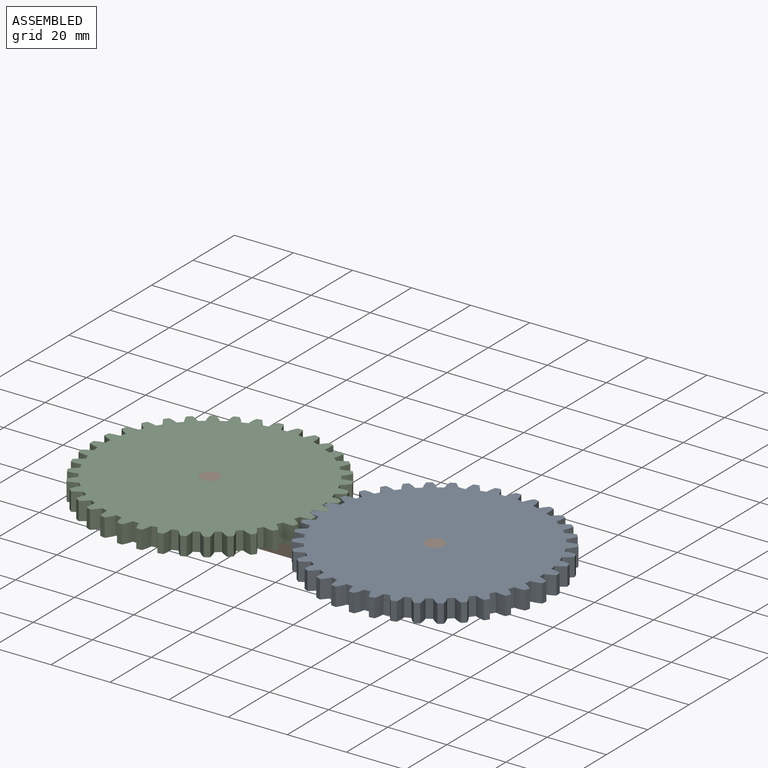
[diagram: assembled view]
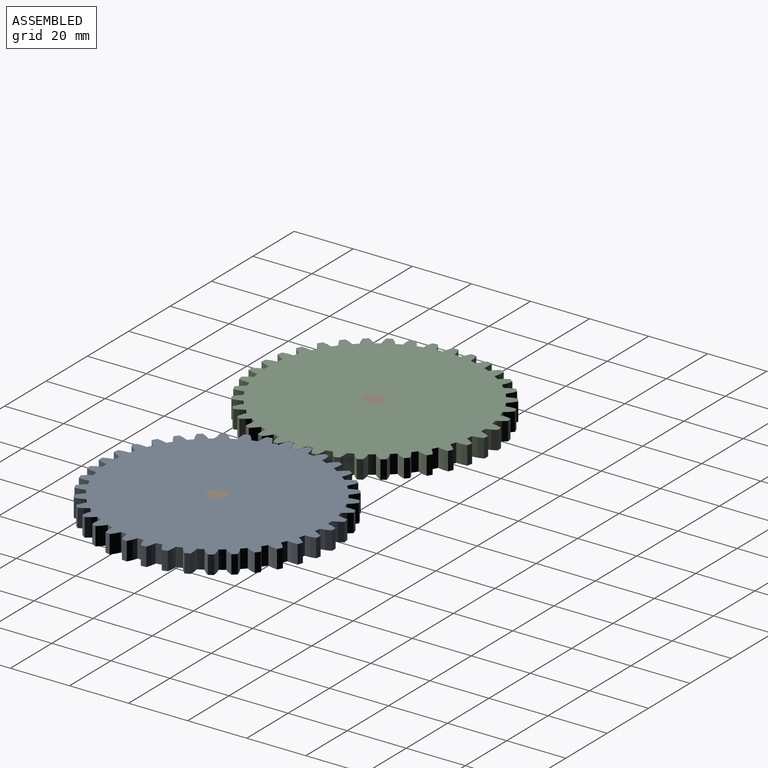
[diagram: assembled view, second angle]
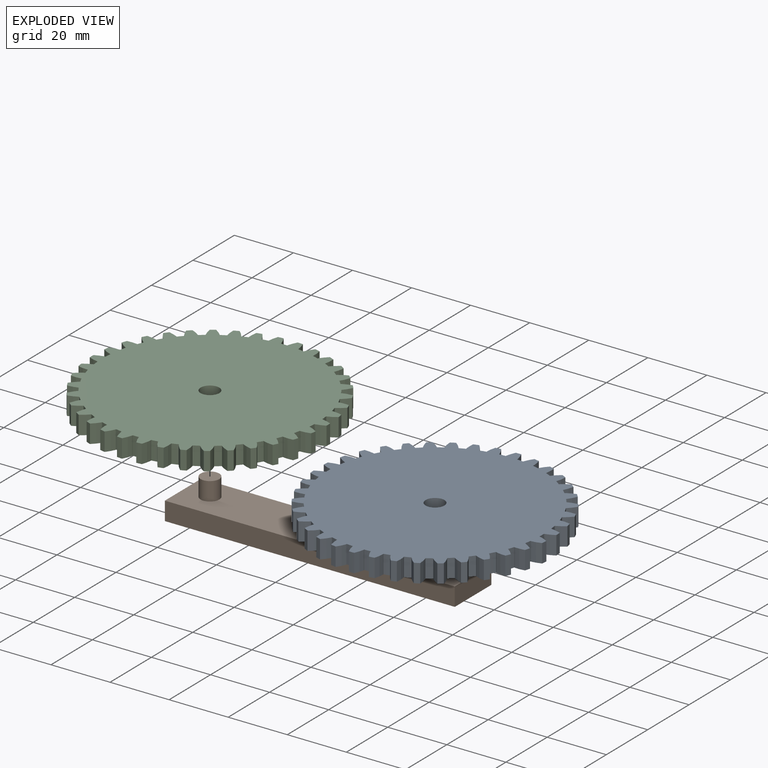
[diagram: exploded view]
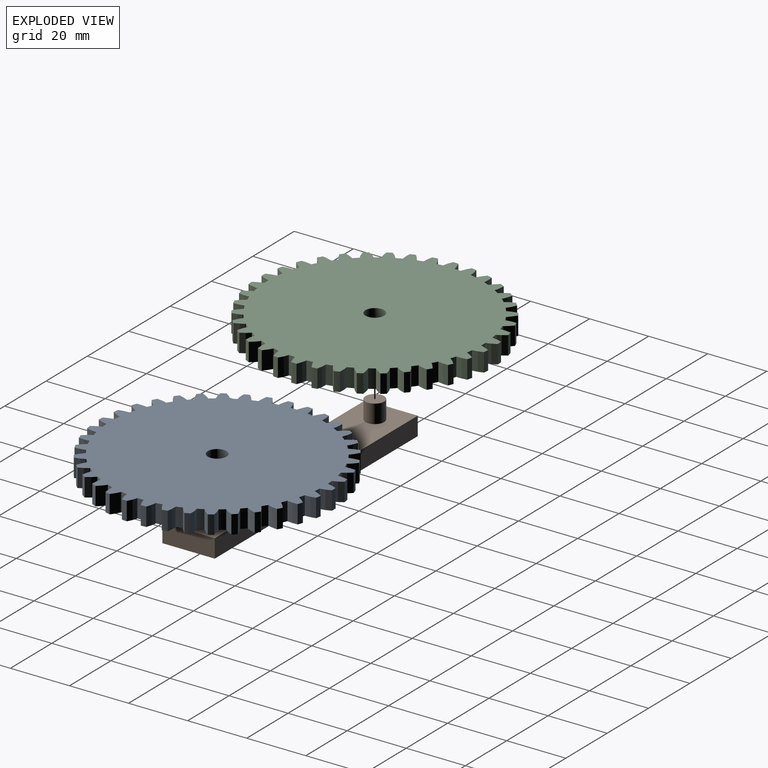
[diagram: exploded view, second angle]
ASSEMBLY  parts=3 mates=2
PART A: 231 faces, bbox 79.6x79.6x6.3 mm
  f0: cylinder r=36.44mm len=6.25mm, axis (0,0,-1), area 13.5mm2, adj f43,f44,f184,f189
  f1: cylinder r=36.44mm len=6.25mm, axis (0,0,-1), area 13.5mm2, adj f43,f44,f164,f169
  f2: cylinder r=36.44mm len=6.25mm, axis (0,0,-1), area 13.5mm2, adj f43,f44,f188,f194
  f3: cylinder r=36.44mm len=6.25mm, axis (0,0,-1), area 13.5mm2, adj f43,f44,f144,f149
  f4: cylinder r=36.44mm len=6.25mm, axis (0,0,-1), area 13.5mm2, adj f43,f44,f148,f154
  f5: cylinder r=36.44mm len=6.25mm, axis (0,0,-1), area 13.5mm2, adj f43,f44,f134,f139
  f6: cylinder r=36.44mm len=6.25mm, axis (0,0,-1), area 13.5mm2, adj f43,f44,f89,f94
  f7: cylinder r=36.44mm len=6.25mm, axis (0,0,-1), area 13.5mm2, adj f43,f44,f99,f104
  f8: cylinder r=36.44mm len=6.25mm, axis (0,0,-1), area 13.5mm2, adj f41,f43,f44,f59
  f9: cylinder r=36.44mm len=6.25mm, axis (0,0,-1), area 13.5mm2, adj f43,f44,f49,f54
  f10: cylinder r=36.44mm len=6.25mm, axis (0,0,-1), area 13.5mm2, adj f43,f44,f69,f74
  f11: cylinder r=36.44mm len=6.25mm, axis (0,0,-1), area 13.5mm2, adj f43,f44,f199,f204
  f12: cylinder r=36.44mm len=6.25mm, axis (0,0,-1), area 13.5mm2, adj f43,f44,f193,f198
  f13: cylinder r=36.44mm len=6.25mm, axis (0,0,-1), area 13.5mm2, adj f43,f44,f119,f124
  f14: cylinder r=36.44mm len=6.25mm, axis (0,0,-1), area 13.5mm2, adj f43,f44,f48,f225
  f15: cylinder r=36.44mm len=6.25mm, axis (0,0,-1), area 13.5mm2, adj f43,f44,f153,f159
  f16: cylinder r=36.44mm len=6.25mm, axis (0,0,-1), area 13.5mm2, adj f43,f44,f168,f174
  f17: cylinder r=36.44mm len=6.25mm, axis (0,0,-1), area 13.5mm2, adj f43,f44,f114,f118
  f18: cylinder r=36.44mm len=6.25mm, axis (0,0,-1), area 13.5mm2, adj f43,f44,f179,f183
  f19: cylinder r=36.44mm len=6.25mm, axis (0,0,-1), area 13.5mm2, adj f43,f44,f219,f224
  f20: cylinder r=36.44mm len=6.25mm, axis (0,0,-1), area 13.5mm2, adj f43,f44,f209,f214
  f21: cylinder r=36.44mm len=6.25mm, axis (0,0,-1), area 13.5mm2, adj f43,f44,f138,f143
  f22: cylinder r=36.44mm len=6.25mm, axis (0,0,-1), area 13.5mm2, adj f43,f44,f158,f163
  f23: cylinder r=36.44mm len=6.25mm, axis (0,0,-1), area 13.5mm2, adj f43,f44,f109,f113
  f24: cylinder r=36.44mm len=6.25mm, axis (0,0,-1), area 13.5mm2, adj f43,f44,f84,f88
  f25: cylinder r=36.44mm len=6.25mm, axis (0,0,-1), area 13.5mm2, adj f43,f44,f53,f58
  f26: cylinder r=36.44mm len=6.25mm, axis (0,0,-1), area 13.5mm2, adj f43,f44,f63,f68
  f27: cylinder r=36.44mm len=6.25mm, axis (0,0,-1), area 13.5mm2, adj f43,f44,f123,f129
  f28: cylinder r=36.44mm len=6.25mm, axis (0,0,-1), area 13.5mm2, adj f43,f44,f203,f208
  f29: cylinder r=36.44mm len=6.25mm, axis (0,0,-1), area 13.5mm2, adj f43,f44,f103,f108
  f30: cylinder r=36.44mm len=6.25mm, axis (0,0,-1), area 13.5mm2, adj f43,f44,f213,f218
  f31: cylinder r=36.44mm len=6.25mm, axis (0,0,-1), area 13.5mm2, adj f43,f44,f73,f79
  f32: cylinder r=36.44mm len=6.25mm, axis (0,0,-1), area 13.5mm2, adj f43,f44,f173,f178
  f33: cylinder r=36.44mm len=6.25mm, axis (0,0,-1), area 13.5mm2, adj f43,f44,f128,f133
  f34: cylinder r=36.44mm len=6.25mm, axis (0,0,-1), area 13.5mm2, adj f43,f44,f223,f229
  f35: cylinder r=36.44mm len=6.25mm, axis (0,0,-1), area 13.5mm2, adj f43,f44,f78,f83
  f36: cylinder r=36.44mm len=6.25mm, axis (0,0,-1), area 13.5mm2, adj f43,f44,f93,f98
  f37: plane 6.25x0.22mm, normal (-0.49,-0.87,0), area 1.6mm2, adj f38,f42,f43,f44
  f38: extruded ~6.25x3.21mm, area 20.6mm2, adj f37,f39,f43,f44
  f39: cylinder r=39.78mm len=6.25mm, axis (0,0,-1), area 11.2mm2, adj f38,f40,f43,f44
  f40: extruded ~6.25x2.48mm, area 20.6mm2, adj f39,f41,f43,f44
  f41: plane 6.25x0.21mm, normal (0.53,0.85,0), area 1.6mm2, adj f8,f40,f43,f44
  f42: cylinder r=36.44mm len=6.25mm, axis (0,0,-1), area 13.5mm2, adj f37,f43,f44,f64
  f43: plane 79.56x79.56mm, normal (0,0,1), area 4524.7mm2, adj f0,f1,f2,f3,f4,f5,f6,f7
  f44: plane 79.56x79.56mm, normal (0,0,-1), area 4524.7mm2, adj f0,f1,f2,f3,f4,f5,f6,f7
  f45: extruded ~6.25x3.17mm, area 20.6mm2, adj f43,f44,f46,f49
  f46: cylinder r=39.78mm len=6.25mm, axis (0,0,-1), area 11.2mm2, adj f43,f44,f45,f47
  f47: extruded ~6.25x3.08mm, area 20.6mm2, adj f43,f44,f46,f48
  f48: plane 6.25x0.25mm, normal (0.06,1,0), area 1.6mm2, adj f14,f43,f44,f47
  f49: plane 6.25x0.25mm, normal (-0.02,-1,0), area 1.6mm2, adj f9,f43,f44,f45
  f50: extruded ~6.25x3.27mm, area 20.6mm2, adj f43,f44,f51,f53
  f51: cylinder r=39.78mm len=6.25mm, axis (0,0,-1), area 11.2mm2, adj f43,f44,f50,f52
  f52: extruded ~6.25x2.85mm, area 20.6mm2, adj f43,f44,f51,f54
  f53: plane 6.25x0.25mm, normal (-0.18,-0.98,0), area 1.6mm2, adj f25,f43,f44,f50
  f54: plane 6.25x0.24mm, normal (0.23,0.97,0), area 1.6mm2, adj f9,f43,f44,f52
  f55: extruded ~6.25x3.29mm, area 20.6mm2, adj f43,f44,f56,f59
  f56: cylinder r=39.78mm len=6.25mm, axis (0,0,-1), area 11.2mm2, adj f43,f44,f55,f57
  f57: extruded ~6.25x2.54mm, area 20.6mm2, adj f43,f44,f56,f58
  f58: plane 6.25x0.23mm, normal (0.38,0.92,0), area 1.6mm2, adj f25,f43,f44,f57
  f59: plane 6.25x0.23mm, normal (-0.34,-0.94,0), area 1.6mm2, adj f8,f43,f44,f55
  f60: extruded ~6.25x3.05mm, area 20.6mm2, adj f43,f44,f61,f63
  f61: cylinder r=39.78mm len=6.25mm, axis (0,0,-1), area 11.2mm2, adj f43,f44,f60,f62
  f62: extruded ~6.25x2.8mm, area 20.6mm2, adj f43,f44,f61,f64
  f63: plane 6.25x0.19mm, normal (-0.63,-0.78,0), area 1.6mm2, adj f26,f43,f44,f60
  f64: plane 6.25x0.19mm, normal (0.66,0.75,0), area 1.6mm2, adj f42,f43,f44,f62
  f65: extruded ~6.25x2.8mm, area 20.6mm2, adj f43,f44,f66,f69
  f66: cylinder r=39.78mm len=6.25mm, axis (0,0,-1), area 11.2mm2, adj f43,f44,f65,f67
  f67: extruded ~6.25x3.05mm, area 20.6mm2, adj f43,f44,f66,f68
  f68: plane 6.25x0.19mm, normal (0.78,0.63,0), area 1.6mm2, adj f26,f43,f44,f67
  f69: plane 6.25x0.19mm, normal (-0.75,-0.66,0), area 1.6mm2, adj f10,f43,f44,f65
  f70: extruded ~6.25x2.48mm, area 20.6mm2, adj f43,f44,f71,f73
  f71: cylinder r=39.78mm len=6.25mm, axis (0,0,-1), area 11.2mm2, adj f43,f44,f70,f72
  f72: extruded ~6.25x3.21mm, area 20.6mm2, adj f43,f44,f71,f74
  f73: plane 6.25x0.21mm, normal (-0.85,-0.53,0), area 1.6mm2, adj f31,f43,f44,f70
  f74: plane 6.25x0.22mm, normal (0.87,0.49,0), area 1.6mm2, adj f10,f43,f44,f72
  f75: extruded ~6.25x2.54mm, area 20.6mm2, adj f43,f44,f76,f78
  f76: cylinder r=39.78mm len=6.25mm, axis (0,0,-1), area 11.2mm2, adj f43,f44,f75,f77
  f77: extruded ~6.25x3.29mm, area 20.6mm2, adj f43,f44,f76,f79
  f78: plane 6.25x0.23mm, normal (-0.92,-0.38,0), area 1.6mm2, adj f35,f43,f44,f75
  f79: plane 6.25x0.23mm, normal (0.94,0.34,0), area 1.6mm2, adj f31,f43,f44,f77
  f80: extruded ~6.25x2.85mm, area 20.6mm2, adj f43,f44,f81,f84
  f81: cylinder r=39.78mm len=6.25mm, axis (0,0,-1), area 11.2mm2, adj f43,f44,f80,f82
  f82: extruded ~6.25x3.27mm, area 20.6mm2, adj f43,f44,f81,f83
  f83: plane 6.25x0.25mm, normal (0.98,0.18,0), area 1.6mm2, adj f35,f43,f44,f82
  f84: plane 6.25x0.24mm, normal (-0.97,-0.23,0), area 1.6mm2, adj f24,f43,f44,f80
  f85: extruded ~6.25x3.08mm, area 20.6mm2, adj f43,f44,f86,f89
  f86: cylinder r=39.78mm len=6.25mm, axis (0,0,-1), area 11.2mm2, adj f43,f44,f85,f87
  f87: extruded ~6.25x3.17mm, area 20.6mm2, adj f43,f44,f86,f88
  f88: plane 6.25x0.25mm, normal (1,0.02,0), area 1.6mm2, adj f24,f43,f44,f87
  f89: plane 6.25x0.25mm, normal (-1,-0.06,0), area 1.6mm2, adj f6,f43,f44,f85
  f90: extruded ~6.25x3.23mm, area 20.6mm2, adj f43,f44,f91,f93
  f91: cylinder r=39.78mm len=6.25mm, axis (0,0,-1), area 11.2mm2, adj f43,f44,f90,f92
  f92: extruded ~6.25x2.98mm, area 20.6mm2, adj f43,f44,f91,f94
  f93: plane 6.25x0.25mm, normal (-0.99,0.1,0), area 1.6mm2, adj f36,f43,f44,f90
  f94: plane 6.25x0.25mm, normal (0.99,-0.14,0), area 1.6mm2, adj f6,f43,f44,f92
  f95: extruded ~6.25x3.29mm, area 20.6mm2, adj f43,f44,f96,f99
  f96: cylinder r=39.78mm len=6.25mm, axis (0,0,-1), area 11.2mm2, adj f43,f44,f95,f97
  f97: extruded ~6.25x2.7mm, area 20.6mm2, adj f43,f44,f96,f98
  f98: plane 6.25x0.24mm, normal (0.95,-0.31,0), area 1.6mm2, adj f36,f43,f44,f97
  f99: plane 6.25x0.24mm, normal (-0.96,0.27,0), area 1.6mm2, adj f7,f43,f44,f95
  f100: extruded ~6.25x3.26mm, area 20.6mm2, adj f43,f44,f101,f103
  f101: cylinder r=39.78mm len=6.25mm, axis (0,0,-1), area 11.2mm2, adj f43,f44,f100,f102
  f102: extruded ~6.25x2.36mm, area 20.6mm2, adj f43,f44,f101,f104
  f103: plane 6.25x0.23mm, normal (-0.91,0.42,0), area 1.6mm2, adj f29,f43,f44,f100
  f104: plane 6.25x0.22mm, normal (0.89,-0.46,0), area 1.6mm2, adj f7,f43,f44,f102
  f105: extruded ~6.25x3.14mm, area 20.6mm2, adj f43,f44,f106,f109
  f106: cylinder r=39.78mm len=6.25mm, axis (0,0,-1), area 11.2mm2, adj f43,f44,f105,f107
  f107: extruded ~6.25x2.65mm, area 20.6mm2, adj f43,f44,f106,f108
  f108: plane 6.25x0.2mm, normal (0.8,-0.6,0), area 1.6mm2, adj f29,f43,f44,f107
  f109: plane 6.25x0.21mm, normal (-0.83,0.56,0), area 1.6mm2, adj f23,f43,f44,f105
  f110: extruded ~6.25x2.94mm, area 20.6mm2, adj f43,f44,f111,f114
  f111: cylinder r=39.78mm len=6.25mm, axis (0,0,-1), area 11.2mm2, adj f43,f44,f110,f112
  f112: extruded ~6.25x2.94mm, area 20.6mm2, adj f43,f44,f111,f113
  f113: plane 6.25x0.18mm, normal (0.69,-0.72,0), area 1.6mm2, adj f23,f43,f44,f112
  f114: plane 6.25x0.18mm, normal (-0.72,0.69,0), area 1.6mm2, adj f17,f43,f44,f110
  f115: extruded ~6.25x2.65mm, area 20.6mm2, adj f43,f44,f116,f119
  f116: cylinder r=39.78mm len=6.25mm, axis (0,0,-1), area 11.2mm2, adj f43,f44,f115,f117
  f117: extruded ~6.25x3.14mm, area 20.6mm2, adj f43,f44,f116,f118
  f118: plane 6.25x0.21mm, normal (0.56,-0.83,0), area 1.6mm2, adj f17,f43,f44,f117
  f119: plane 6.25x0.2mm, normal (-0.6,0.8,0), area 1.6mm2, adj f13,f43,f44,f115
  f120: extruded ~6.25x2.36mm, area 20.6mm2, adj f43,f44,f121,f123
  f121: cylinder r=39.78mm len=6.25mm, axis (0,0,-1), area 11.2mm2, adj f43,f44,f120,f122
  f122: extruded ~6.25x3.26mm, area 20.6mm2, adj f43,f44,f121,f124
  f123: plane 6.25x0.22mm, normal (-0.46,0.89,0), area 1.6mm2, adj f27,f43,f44,f120
  f124: plane 6.25x0.23mm, normal (0.42,-0.91,0), area 1.6mm2, adj f13,f43,f44,f122
  f125: extruded ~6.25x2.7mm, area 20.6mm2, adj f43,f44,f126,f128
  f126: cylinder r=39.78mm len=6.25mm, axis (0,0,-1), area 11.2mm2, adj f43,f44,f125,f127
  f127: extruded ~6.25x3.29mm, area 20.6mm2, adj f43,f44,f126,f129
  f128: plane 6.25x0.24mm, normal (-0.31,0.95,0), area 1.6mm2, adj f33,f43,f44,f125
  f129: plane 6.25x0.24mm, normal (0.27,-0.96,0), area 1.6mm2, adj f27,f43,f44,f127
  f130: extruded ~6.25x2.98mm, area 20.6mm2, adj f43,f44,f131,f134
  f131: cylinder r=39.78mm len=6.25mm, axis (0,0,-1), area 11.2mm2, adj f43,f44,f130,f132
  f132: extruded ~6.25x3.23mm, area 20.6mm2, adj f43,f44,f131,f133
  f133: plane 6.25x0.25mm, normal (0.1,-0.99,0), area 1.6mm2, adj f33,f43,f44,f132
  f134: plane 6.25x0.25mm, normal (-0.14,0.99,0), area 1.6mm2, adj f5,f43,f44,f130
  f135: extruded ~6.25x3.17mm, area 20.6mm2, adj f43,f44,f136,f138
  f136: cylinder r=39.78mm len=6.25mm, axis (0,0,-1), area 11.2mm2, adj f43,f44,f135,f137
  f137: extruded ~6.25x3.08mm, area 20.6mm2, adj f43,f44,f136,f139
  f138: plane 6.25x0.25mm, normal (0.02,1,0), area 1.6mm2, adj f21,f43,f44,f135
  f139: plane 6.25x0.25mm, normal (-0.06,-1,0), area 1.6mm2, adj f5,f43,f44,f137
  f140: extruded ~6.25x3.27mm, area 20.6mm2, adj f43,f44,f141,f144
  f141: cylinder r=39.78mm len=6.25mm, axis (0,0,-1), area 11.2mm2, adj f43,f44,f140,f142
  f142: extruded ~6.25x2.85mm, area 20.6mm2, adj f43,f44,f141,f143
  f143: plane 6.25x0.24mm, normal (-0.23,-0.97,0), area 1.6mm2, adj f21,f43,f44,f142
  f144: plane 6.25x0.25mm, normal (0.18,0.98,0), area 1.6mm2, adj f3,f43,f44,f140
  f145: extruded ~6.25x3.29mm, area 20.6mm2, adj f43,f44,f146,f148
  f146: cylinder r=39.78mm len=6.25mm, axis (0,0,-1), area 11.2mm2, adj f43,f44,f145,f147
  f147: extruded ~6.25x2.54mm, area 20.6mm2, adj f43,f44,f146,f149
  f148: plane 6.25x0.23mm, normal (0.34,0.94,0), area 1.6mm2, adj f4,f43,f44,f145
  f149: plane 6.25x0.23mm, normal (-0.38,-0.92,0), area 1.6mm2, adj f3,f43,f44,f147
  f150: extruded ~6.25x3.21mm, area 20.6mm2, adj f43,f44,f151,f153
  f151: cylinder r=39.78mm len=6.25mm, axis (0,0,-1), area 11.2mm2, adj f43,f44,f150,f152
  f152: extruded ~6.25x2.48mm, area 20.6mm2, adj f43,f44,f151,f154
  f153: plane 6.25x0.22mm, normal (0.49,0.87,0), area 1.6mm2, adj f15,f43,f44,f150
  f154: plane 6.25x0.21mm, normal (-0.53,-0.85,0), area 1.6mm2, adj f4,f43,f44,f152
  f155: extruded ~6.25x3.05mm, area 20.6mm2, adj f43,f44,f156,f158
  f156: cylinder r=39.78mm len=6.25mm, axis (0,0,-1), area 11.2mm2, adj f43,f44,f155,f157
  f157: extruded ~6.25x2.8mm, area 20.6mm2, adj f43,f44,f156,f159
  f158: plane 6.25x0.19mm, normal (0.63,0.78,0), area 1.6mm2, adj f22,f43,f44,f155
  f159: plane 6.25x0.19mm, normal (-0.66,-0.75,0), area 1.6mm2, adj f15,f43,f44,f157
  f160: extruded ~6.25x2.8mm, area 20.6mm2, adj f43,f44,f161,f164
  f161: cylinder r=39.78mm len=6.25mm, axis (0,0,-1), area 11.2mm2, adj f43,f44,f160,f162
  f162: extruded ~6.25x3.05mm, area 20.6mm2, adj f43,f44,f161,f163
  f163: plane 6.25x0.19mm, normal (-0.78,-0.63,0), area 1.6mm2, adj f22,f43,f44,f162
  f164: plane 6.25x0.19mm, normal (0.75,0.66,0), area 1.6mm2, adj f1,f43,f44,f160
  f165: extruded ~6.25x2.48mm, area 20.6mm2, adj f43,f44,f166,f168
  f166: cylinder r=39.78mm len=6.25mm, axis (0,0,-1), area 11.2mm2, adj f43,f44,f165,f167
  f167: extruded ~6.25x3.21mm, area 20.6mm2, adj f43,f44,f166,f169
  f168: plane 6.25x0.21mm, normal (0.85,0.53,0), area 1.6mm2, adj f16,f43,f44,f165
  f169: plane 6.25x0.22mm, normal (-0.87,-0.49,0), area 1.6mm2, adj f1,f43,f44,f167
  f170: extruded ~6.25x2.54mm, area 20.6mm2, adj f43,f44,f171,f173
  f171: cylinder r=39.78mm len=6.25mm, axis (0,0,-1), area 11.2mm2, adj f43,f44,f170,f172
  f172: extruded ~6.25x3.29mm, area 20.6mm2, adj f43,f44,f171,f174
  f173: plane 6.25x0.23mm, normal (0.92,0.38,0), area 1.6mm2, adj f32,f43,f44,f170
  f174: plane 6.25x0.23mm, normal (-0.94,-0.34,0), area 1.6mm2, adj f16,f43,f44,f172
  f175: extruded ~6.25x2.85mm, area 20.6mm2, adj f43,f44,f176,f179
  f176: cylinder r=39.78mm len=6.25mm, axis (0,0,-1), area 11.2mm2, adj f43,f44,f175,f177
  f177: extruded ~6.25x3.27mm, area 20.6mm2, adj f43,f44,f176,f178
  f178: plane 6.25x0.25mm, normal (-0.98,-0.18,0), area 1.6mm2, adj f32,f43,f44,f177
  f179: plane 6.25x0.24mm, normal (0.97,0.23,0), area 1.6mm2, adj f18,f43,f44,f175
  f180: extruded ~6.25x3.08mm, area 20.6mm2, adj f43,f44,f181,f184
  f181: cylinder r=39.78mm len=6.25mm, axis (0,0,-1), area 11.2mm2, adj f43,f44,f180,f182
  f182: extruded ~6.25x3.17mm, area 20.6mm2, adj f43,f44,f181,f183
  f183: plane 6.25x0.25mm, normal (-1,-0.02,0), area 1.6mm2, adj f18,f43,f44,f182
  f184: plane 6.25x0.25mm, normal (1,0.06,0), area 1.6mm2, adj f0,f43,f44,f180
  f185: extruded ~6.25x3.23mm, area 20.6mm2, adj f43,f44,f186,f188
  f186: cylinder r=39.78mm len=6.25mm, axis (0,0,-1), area 11.2mm2, adj f43,f44,f185,f187
  f187: extruded ~6.25x2.98mm, area 20.6mm2, adj f43,f44,f186,f189
  f188: plane 6.25x0.25mm, normal (0.99,-0.1,0), area 1.6mm2, adj f2,f43,f44,f185
  f189: plane 6.25x0.25mm, normal (-0.99,0.14,0), area 1.6mm2, adj f0,f43,f44,f187
  f190: extruded ~6.25x3.29mm, area 20.6mm2, adj f43,f44,f191,f193
  f191: cylinder r=39.78mm len=6.25mm, axis (0,0,-1), area 11.2mm2, adj f43,f44,f190,f192
  f192: extruded ~6.25x2.7mm, area 20.6mm2, adj f43,f44,f191,f194
  f193: plane 6.25x0.24mm, normal (0.96,-0.27,0), area 1.6mm2, adj f12,f43,f44,f190
  f194: plane 6.25x0.24mm, normal (-0.95,0.31,0), area 1.6mm2, adj f2,f43,f44,f192
  f195: extruded ~6.25x3.26mm, area 20.6mm2, adj f43,f44,f196,f199
  f196: cylinder r=39.78mm len=6.25mm, axis (0,0,-1), area 11.2mm2, adj f43,f44,f195,f197
  f197: extruded ~6.25x2.36mm, area 20.6mm2, adj f43,f44,f196,f198
  f198: plane 6.25x0.22mm, normal (-0.89,0.46,0), area 1.6mm2, adj f12,f43,f44,f197
  f199: plane 6.25x0.23mm, normal (0.91,-0.42,0), area 1.6mm2, adj f11,f43,f44,f195
  f200: extruded ~6.25x3.14mm, area 20.6mm2, adj f43,f44,f201,f203
  f201: cylinder r=39.78mm len=6.25mm, axis (0,0,-1), area 11.2mm2, adj f43,f44,f200,f202
  f202: extruded ~6.25x2.65mm, area 20.6mm2, adj f43,f44,f201,f204
  f203: plane 6.25x0.21mm, normal (0.83,-0.56,0), area 1.6mm2, adj f28,f43,f44,f200
  f204: plane 6.25x0.2mm, normal (-0.8,0.6,0), area 1.6mm2, adj f11,f43,f44,f202
  f205: extruded ~6.25x2.94mm, area 20.6mm2, adj f43,f44,f206,f209
  f206: cylinder r=39.78mm len=6.25mm, axis (0,0,-1), area 11.2mm2, adj f43,f44,f205,f207
  f207: extruded ~6.25x2.94mm, area 20.6mm2, adj f43,f44,f206,f208
  f208: plane 6.25x0.18mm, normal (-0.69,0.72,0), area 1.6mm2, adj f28,f43,f44,f207
  f209: plane 6.25x0.18mm, normal (0.72,-0.69,0), area 1.6mm2, adj f20,f43,f44,f205
  f210: extruded ~6.25x2.65mm, area 20.6mm2, adj f43,f44,f211,f213
  f211: cylinder r=39.78mm len=6.25mm, axis (0,0,-1), area 11.2mm2, adj f43,f44,f210,f212
  f212: extruded ~6.25x3.14mm, area 20.6mm2, adj f43,f44,f211,f214
  f213: plane 6.25x0.2mm, normal (0.6,-0.8,0), area 1.6mm2, adj f30,f43,f44,f210
  f214: plane 6.25x0.21mm, normal (-0.56,0.83,0), area 1.6mm2, adj f20,f43,f44,f212
  f215: extruded ~6.25x2.36mm, area 20.6mm2, adj f43,f44,f216,f219
  f216: cylinder r=39.78mm len=6.25mm, axis (0,0,-1), area 11.2mm2, adj f43,f44,f215,f217
  f217: extruded ~6.25x3.26mm, area 20.6mm2, adj f43,f44,f216,f218
  f218: plane 6.25x0.23mm, normal (-0.42,0.91,0), area 1.6mm2, adj f30,f43,f44,f217
  f219: plane 6.25x0.22mm, normal (0.46,-0.89,0), area 1.6mm2, adj f19,f43,f44,f215
  f220: extruded ~6.25x2.7mm, area 20.6mm2, adj f43,f44,f221,f223
  f221: cylinder r=39.78mm len=6.25mm, axis (0,0,-1), area 11.2mm2, adj f43,f44,f220,f222
  f222: extruded ~6.25x3.29mm, area 20.6mm2, adj f43,f44,f221,f224
  f223: plane 6.25x0.24mm, normal (0.31,-0.95,0), area 1.6mm2, adj f34,f43,f44,f220
  f224: plane 6.25x0.24mm, normal (-0.27,0.96,0), area 1.6mm2, adj f19,f43,f44,f222
  f225: plane 6.25x0.25mm, normal (0.14,-0.99,0), area 1.6mm2, adj f14,f43,f44,f226
  f226: extruded ~6.25x2.98mm, area 20.6mm2, adj f43,f44,f225,f227
  f227: cylinder r=39.78mm len=6.25mm, axis (0,0,-1), area 11.2mm2, adj f43,f44,f226,f228
  f228: extruded ~6.25x3.23mm, area 20.6mm2, adj f43,f44,f227,f229
  f229: plane 6.25x0.25mm, normal (-0.1,0.99,0), area 1.6mm2, adj f34,f43,f44,f228
  f230: cylinder r=3.17mm len=6.35mm, axis (0,0,-1), area 124.7mm2, adj f43,f44
PART B: 10 faces, bbox 98.2x17.7x12.5 mm
  f0: plane 17.71x6.25mm, normal (-1,0,0), area 110.7mm2, adj f1,f3,f4,f5
  f1: plane 98.17x6.25mm, normal (0,-1,0), area 613.6mm2, adj f0,f2,f4,f5
  f2: plane 17.71x6.25mm, normal (1,0,0), area 110.7mm2, adj f1,f3,f4,f5
  f3: plane 98.17x6.25mm, normal (0,1,0), area 613.6mm2, adj f0,f2,f4,f5
  f4: plane 98.17x17.71mm, normal (0,0,-1), area 1738.2mm2, adj f0,f1,f2,f3
  f5: plane 98.17x17.71mm, normal (0,0,1), area 1674.9mm2, adj f0,f1,f2,f3,f6,f8
  f6: cylinder r=3.17mm len=6.35mm, axis (0,0,-1), area 124.7mm2, adj f5,f7
  f7: plane 6.35x6.35mm, normal (0,0,1), area 31.7mm2, adj f6
  f8: cylinder r=3.17mm len=6.35mm, axis (0,0,-1), area 124.7mm2, adj f5,f9
  f9: plane 6.35x6.35mm, normal (0,0,1), area 31.7mm2, adj f8
PART C: same geometry as A
PLACE A rot(axis=(0,0,-1),69.3deg) t=(0,0,0)mm
PLACE B at identity fixed
PLACE C rot(axis=(-0.18,-0.98,0),180deg) t=(-76.19,0,6.25)mm
MATE revolute C.f230 <-> B.f8  axis (0,0,-1) through (-76.2,0,0)mm
MATE revolute A.f61 <-> B.f6  axis (0,0,1) through (0,0,6.25)mm
